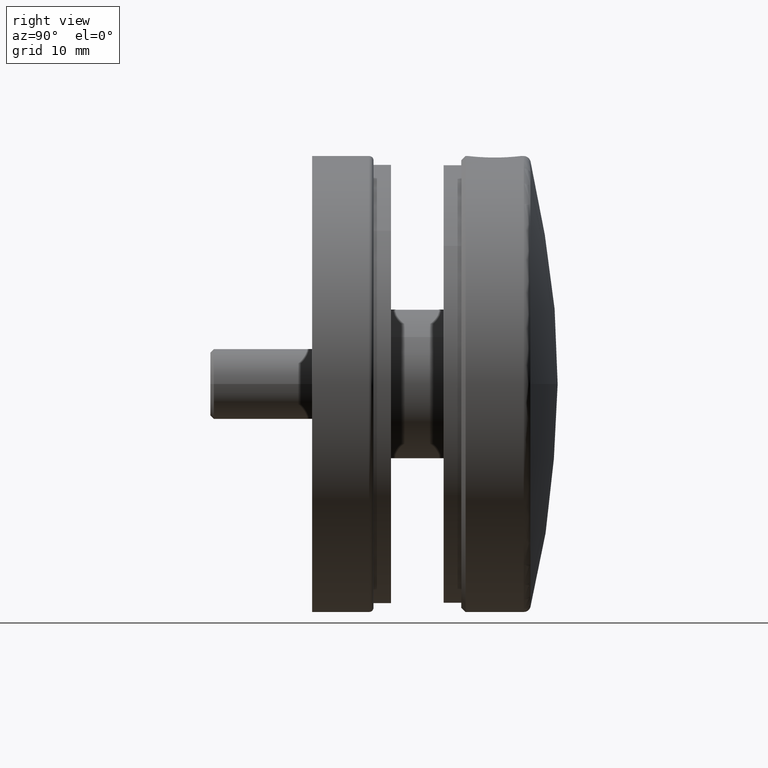
[diagram: clean part render]
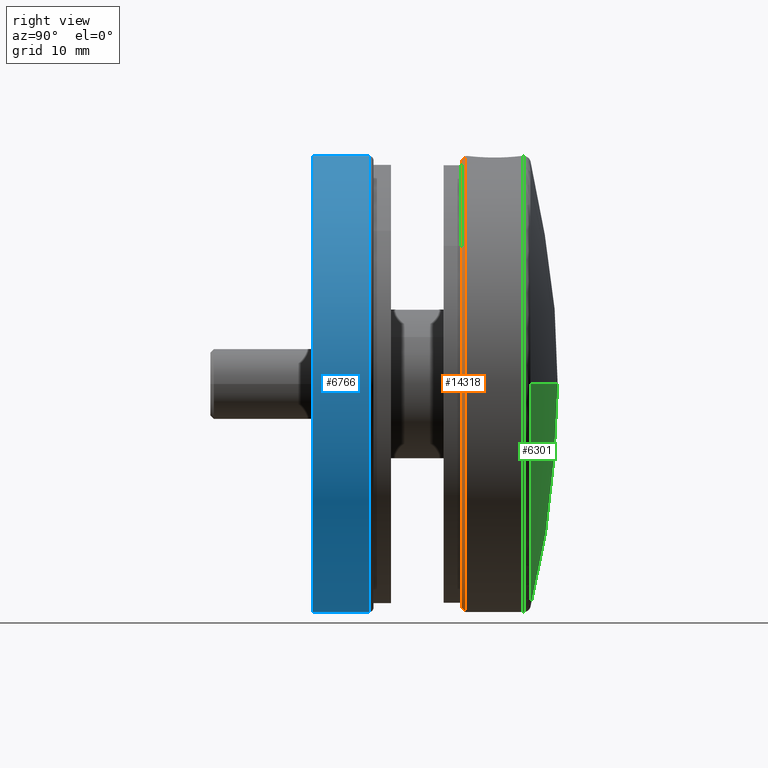
[diagram: same view with three faces highlighted in distinct colors, each labeled with its STEP entity id]
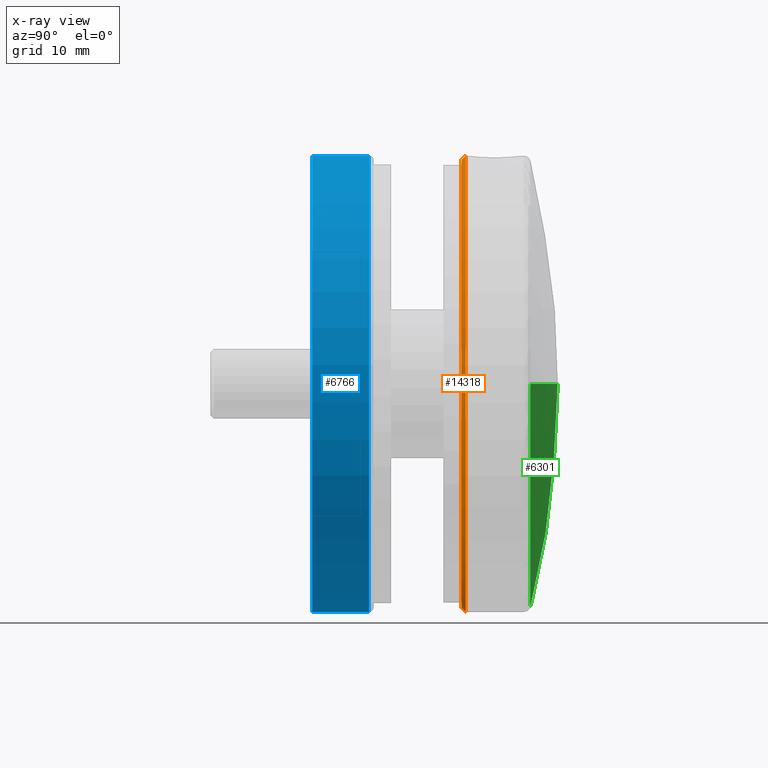
[diagram: x-ray of the same camera — body ghosted, the three highlighted faces saturated]
A machine part, right view with three faces highlighted in distinct colors.
The next image is the same camera in x-ray (body ghosted, the three faces saturated) — at least one of them is partly hidden behind the body in this view.
Their STEP definitions:

[orange] entity #14318 — the highlighted conical surface has half-angle 45 deg.
#94 = EDGE_LOOP ( 'NONE', ( #4550, #8871, #7643, #6538 ) ) ;
#176 = AXIS2_PLACEMENT_3D ( 'NONE', #8467, #1631, #10654 ) ;
#601 = EDGE_CURVE ( 'NONE', #7537, #5737, #7961, .T. ) ;
#866 = CARTESIAN_POINT ( 'NONE',  ( 26.00000000000000400, 0.5000000000000108800, 26.00000000000000000 ) ) ;
#1036 = DIRECTION ( 'NONE',  ( 0.0000000000000000000, 1.000000000000000000, 0.0000000000000000000 ) ) ;
#1631 = DIRECTION ( 'NONE',  ( -0.0000000000000000000, -1.000000000000000000, -0.0000000000000000000 ) ) ;
#1731 = CARTESIAN_POINT ( 'NONE',  ( 26.00000000000000400, 0.0000000000000000000, -25.50000000000000000 ) ) ;
#2513 = AXIS2_PLACEMENT_3D ( 'NONE', #5576, #11255, #5409 ) ;
#2545 = DIRECTION ( 'NONE',  ( 0.0000000000000000000, 0.7071067811865549000, 0.7071067811865401300 ) ) ;
#2652 = VERTEX_POINT ( 'NONE', #12923 ) ;
#4194 = CIRCLE ( 'NONE', #176, 25.50000000000000000 ) ;
#4550 = ORIENTED_EDGE ( 'NONE', *, *, #10211, .F. ) ;
#5409 = DIRECTION ( 'NONE',  ( 0.0000000000000000000, 0.0000000000000000000, 1.000000000000000000 ) ) ;
#5421 = LINE ( 'NONE', #11249, #13850 ) ;
#5576 = CARTESIAN_POINT ( 'NONE',  ( 26.00000000000000000, 0.5000000000000108800, 0.0000000000000000000 ) ) ;
#5737 = VERTEX_POINT ( 'NONE', #11520 ) ;
#6538 = ORIENTED_EDGE ( 'NONE', *, *, #14040, .F. ) ;
#7537 = VERTEX_POINT ( 'NONE', #866 ) ;
#7643 = ORIENTED_EDGE ( 'NONE', *, *, #601, .F. ) ;
#7961 = CIRCLE ( 'NONE', #2513, 26.00000000000000000 ) ;
#8467 = CARTESIAN_POINT ( 'NONE',  ( 26.00000000000000000, 0.0000000000000000000, 0.0000000000000000000 ) ) ;
#8871 = ORIENTED_EDGE ( 'NONE', *, *, #10741, .T. ) ;
#8923 = CARTESIAN_POINT ( 'NONE',  ( 26.00000000000000000, 0.0000000000000000000, 0.0000000000000000000 ) ) ;
#9272 = CARTESIAN_POINT ( 'NONE',  ( 26.00000000000000000, 0.0000000000000000000, 25.50000000000000000 ) ) ;
#10211 = EDGE_CURVE ( 'NONE', #10815, #2652, #4194, .T. ) ;
#10654 = DIRECTION ( 'NONE',  ( 0.0000000000000000000, 0.0000000000000000000, 1.000000000000000000 ) ) ;
#10741 = EDGE_CURVE ( 'NONE', #10815, #5737, #5421, .T. ) ;
#10815 = VERTEX_POINT ( 'NONE', #1731 ) ;
#11249 = CARTESIAN_POINT ( 'NONE',  ( 26.00000000000000400, 0.0000000000000000000, -25.50000000000000000 ) ) ;
#11255 = DIRECTION ( 'NONE',  ( 0.0000000000000000000, 1.000000000000000000, 0.0000000000000000000 ) ) ;
#11402 = DIRECTION ( 'NONE',  ( 8.659560562354842900E-017, 0.7071067811865549000, -0.7071067811865401300 ) ) ;
#11483 = CONICAL_SURFACE ( 'NONE', #12761, 25.50000000000000000, 0.7853981633974378400 ) ;
#11520 = CARTESIAN_POINT ( 'NONE',  ( 26.00000000000000000, 0.5000000000000108800, -26.00000000000000000 ) ) ;
#11661 = VECTOR ( 'NONE', #2545, 1000.000000000000000 ) ;
#12726 = FACE_OUTER_BOUND ( 'NONE', #94, .T. ) ;
#12761 = AXIS2_PLACEMENT_3D ( 'NONE', #8923, #1036, #14711 ) ;
#12923 = CARTESIAN_POINT ( 'NONE',  ( 26.00000000000000000, 0.0000000000000000000, 25.50000000000000000 ) ) ;
#13850 = VECTOR ( 'NONE', #11402, 1000.000000000000000 ) ;
#14040 = EDGE_CURVE ( 'NONE', #2652, #7537, #14707, .T. ) ;
#14318 = ADVANCED_FACE ( 'NONE', ( #12726 ), #11483, .T. ) ;
#14707 = LINE ( 'NONE', #9272, #11661 ) ;
#14711 = DIRECTION ( 'NONE',  ( 0.0000000000000000000, 0.0000000000000000000, 1.000000000000000000 ) ) ;

[blue] entity #6766 — the highlighted cylindrical surface (partial cylindrical patch) has radius 26 mm, axis along (0, 1, 0).
#971 = EDGE_CURVE ( 'NONE', #6084, #6555, #11864, .T. ) ;
#1290 = EDGE_CURVE ( 'NONE', #9121, #3278, #8113, .T. ) ;
#2173 = AXIS2_PLACEMENT_3D ( 'NONE', #8965, #12367, #7857 ) ;
#2417 = ORIENTED_EDGE ( 'NONE', *, *, #10372, .T. ) ;
#2694 = DIRECTION ( 'NONE',  ( 0.0000000000000000000, 0.0000000000000000000, -1.000000000000000000 ) ) ;
#2808 = FACE_OUTER_BOUND ( 'NONE', #9168, .T. ) ;
#3111 = CARTESIAN_POINT ( 'NONE',  ( 3.184081677783118600E-015, 7.000000000000000000, 26.00000000000000400 ) ) ;
#3278 = VERTEX_POINT ( 'NONE', #6685 ) ;
#3616 = VECTOR ( 'NONE', #11642, 1000.000000000000000 ) ;
#4640 = DIRECTION ( 'NONE',  ( 0.0000000000000000000, 0.0000000000000000000, 1.000000000000000000 ) ) ;
#4683 = VECTOR ( 'NONE', #10355, 1000.000000000000000 ) ;
#5854 = CYLINDRICAL_SURFACE ( 'NONE', #11102, 26.00000000000000400 ) ;
#5910 = CARTESIAN_POINT ( 'NONE',  ( 0.0000000000000000000, 7.000000000000000000, 0.0000000000000000000 ) ) ;
#6084 = VERTEX_POINT ( 'NONE', #3111 ) ;
#6555 = VERTEX_POINT ( 'NONE', #12865 ) ;
#6685 = CARTESIAN_POINT ( 'NONE',  ( 0.0000000000000000000, 0.4999999999999995600, -26.00000000000000400 ) ) ;
#6766 = ADVANCED_FACE ( 'NONE', ( #2808 ), #5854, .T. ) ;
#7404 = ORIENTED_EDGE ( 'NONE', *, *, #971, .T. ) ;
#7646 = AXIS2_PLACEMENT_3D ( 'NONE', #11437, #12489, #4640 ) ;
#7857 = DIRECTION ( 'NONE',  ( 0.0000000000000000000, 0.0000000000000000000, 1.000000000000000000 ) ) ;
#7980 = CIRCLE ( 'NONE', #7646, 26.00000000000000400 ) ;
#8113 = LINE ( 'NONE', #13814, #4683 ) ;
#8181 = ORIENTED_EDGE ( 'NONE', *, *, #9756, .F. ) ;
#8430 = DIRECTION ( 'NONE',  ( -0.0000000000000000000, -1.000000000000000000, -0.0000000000000000000 ) ) ;
#8965 = CARTESIAN_POINT ( 'NONE',  ( 0.0000000000000000000, 0.4999999999999995600, 0.0000000000000000000 ) ) ;
#9121 = VERTEX_POINT ( 'NONE', #10385 ) ;
#9168 = EDGE_LOOP ( 'NONE', ( #8181, #7404, #2417, #10583 ) ) ;
#9756 = EDGE_CURVE ( 'NONE', #6084, #9121, #7980, .T. ) ;
#10355 = DIRECTION ( 'NONE',  ( -0.0000000000000000000, -1.000000000000000000, -0.0000000000000000000 ) ) ;
#10372 = EDGE_CURVE ( 'NONE', #6555, #3278, #12075, .T. ) ;
#10385 = CARTESIAN_POINT ( 'NONE',  ( 0.0000000000000000000, 7.000000000000000000, -26.00000000000000400 ) ) ;
#10583 = ORIENTED_EDGE ( 'NONE', *, *, #1290, .F. ) ;
#11102 = AXIS2_PLACEMENT_3D ( 'NONE', #5910, #8430, #2694 ) ;
#11437 = CARTESIAN_POINT ( 'NONE',  ( 0.0000000000000000000, 7.000000000000000000, 0.0000000000000000000 ) ) ;
#11642 = DIRECTION ( 'NONE',  ( -0.0000000000000000000, -1.000000000000000000, -0.0000000000000000000 ) ) ;
#11864 = LINE ( 'NONE', #13969, #3616 ) ;
#12075 = CIRCLE ( 'NONE', #2173, 26.00000000000000400 ) ;
#12367 = DIRECTION ( 'NONE',  ( 0.0000000000000000000, 1.000000000000000000, 0.0000000000000000000 ) ) ;
#12489 = DIRECTION ( 'NONE',  ( 0.0000000000000000000, 1.000000000000000000, 0.0000000000000000000 ) ) ;
#12865 = CARTESIAN_POINT ( 'NONE',  ( 3.184081677783118600E-015, 0.4999999999999995600, 26.00000000000000400 ) ) ;
#13814 = CARTESIAN_POINT ( 'NONE',  ( 0.0000000000000000000, 7.000000000000000000, -26.00000000000000400 ) ) ;
#13969 = CARTESIAN_POINT ( 'NONE',  ( 3.184081677783118600E-015, 7.000000000000000000, 26.00000000000000400 ) ) ;

[green] entity #6301 — the highlighted spherical surface has radius 105.67 mm.
#99 = VERTEX_POINT ( 'NONE', #1767 ) ;
#711 = DIRECTION ( 'NONE',  ( -1.000000000000000000, 0.0000000000000000000, 1.224646799147353200E-016 ) ) ;
#1068 = DIRECTION ( 'NONE',  ( 0.0000000000000000000, 1.000000000000000000, 0.0000000000000000000 ) ) ;
#1695 = CARTESIAN_POINT ( 'NONE',  ( 26.00000000000000000, 7.903793675071546500, -25.39223800896348100 ) ) ;
#1755 = CARTESIAN_POINT ( 'NONE',  ( 26.00000000000000400, -94.67000000000000200, 0.0000000000000000000 ) ) ;
#1767 = CARTESIAN_POINT ( 'NONE',  ( 51.39223800896347400, 7.903793675071553600, -3.109652300086488700E-015 ) ) ;
#2020 = CARTESIAN_POINT ( 'NONE',  ( 26.00000000000000400, -94.67000000000000200, 0.0000000000000000000 ) ) ;
#2036 = AXIS2_PLACEMENT_3D ( 'NONE', #7947, #1068, #2216 ) ;
#2216 = DIRECTION ( 'NONE',  ( 0.0000000000000000000, 0.0000000000000000000, -1.000000000000000000 ) ) ;
#2311 = VERTEX_POINT ( 'NONE', #7907 ) ;
#2756 = EDGE_CURVE ( 'NONE', #2311, #2898, #6833, .T. ) ;
#2898 = VERTEX_POINT ( 'NONE', #6079 ) ;
#2965 = DIRECTION ( 'NONE',  ( -1.224646799147353200E-016, 0.0000000000000000000, -1.000000000000000000 ) ) ;
#3194 = DIRECTION ( 'NONE',  ( -0.0000000000000000000, 0.0000000000000000000, 1.000000000000000000 ) ) ;
#3299 = ORIENTED_EDGE ( 'NONE', *, *, #3776, .T. ) ;
#3328 = DIRECTION ( 'NONE',  ( 0.0000000000000000000, 0.0000000000000000000, -1.000000000000000000 ) ) ;
#3338 = EDGE_CURVE ( 'NONE', #99, #13491, #6818, .T. ) ;
#3776 = EDGE_CURVE ( 'NONE', #2311, #99, #14141, .T. ) ;
#3816 = EDGE_CURVE ( 'NONE', #13491, #2898, #13806, .T. ) ;
#4072 = EDGE_LOOP ( 'NONE', ( #5146, #3299, #12473, #4712 ) ) ;
#4333 = DIRECTION ( 'NONE',  ( 1.000000000000000000, 0.0000000000000000000, 0.0000000000000000000 ) ) ;
#4712 = ORIENTED_EDGE ( 'NONE', *, *, #3816, .T. ) ;
#5146 = ORIENTED_EDGE ( 'NONE', *, *, #2756, .F. ) ;
#5666 = FACE_OUTER_BOUND ( 'NONE', #4072, .T. ) ;
#6079 = CARTESIAN_POINT ( 'NONE',  ( 0.6077619910365237300, 7.903793675071553600, 0.0000000000000000000 ) ) ;
#6301 = ADVANCED_FACE ( 'NONE', ( #5666 ), #13724, .T. ) ;
#6478 = AXIS2_PLACEMENT_3D ( 'NONE', #6753, #12368, #12557 ) ;
#6753 = CARTESIAN_POINT ( 'NONE',  ( 26.00000000000000400, -94.67000000000000200, 0.0000000000000000000 ) ) ;
#6818 = CIRCLE ( 'NONE', #2036, 25.39223800896348100 ) ;
#6833 = CIRCLE ( 'NONE', #14710, 105.6699999999999900 ) ;
#7143 = DIRECTION ( 'NONE',  ( 0.0000000000000000000, 1.000000000000000000, 0.0000000000000000000 ) ) ;
#7907 = CARTESIAN_POINT ( 'NONE',  ( 25.99999999999999600, 10.99999999999998200, 0.0000000000000000000 ) ) ;
#7947 = CARTESIAN_POINT ( 'NONE',  ( 26.00000000000000400, 7.903793675071546500, 0.0000000000000000000 ) ) ;
#11218 = CARTESIAN_POINT ( 'NONE',  ( 26.00000000000000400, 7.903793675071546500, 0.0000000000000000000 ) ) ;
#11564 = AXIS2_PLACEMENT_3D ( 'NONE', #1755, #2965, #711 ) ;
#12368 = DIRECTION ( 'NONE',  ( -0.0000000000000000000, -0.0000000000000000000, -1.000000000000000000 ) ) ;
#12473 = ORIENTED_EDGE ( 'NONE', *, *, #3338, .T. ) ;
#12557 = DIRECTION ( 'NONE',  ( -1.000000000000000000, 0.0000000000000000000, 0.0000000000000000000 ) ) ;
#13491 = VERTEX_POINT ( 'NONE', #1695 ) ;
#13724 = SPHERICAL_SURFACE ( 'NONE', #6478, 105.6699999999999900 ) ;
#13806 = CIRCLE ( 'NONE', #13848, 25.39223800896348100 ) ;
#13848 = AXIS2_PLACEMENT_3D ( 'NONE', #11218, #7143, #3328 ) ;
#14141 = CIRCLE ( 'NONE', #11564, 105.6699999999999900 ) ;
#14710 = AXIS2_PLACEMENT_3D ( 'NONE', #2020, #3194, #4333 ) ;